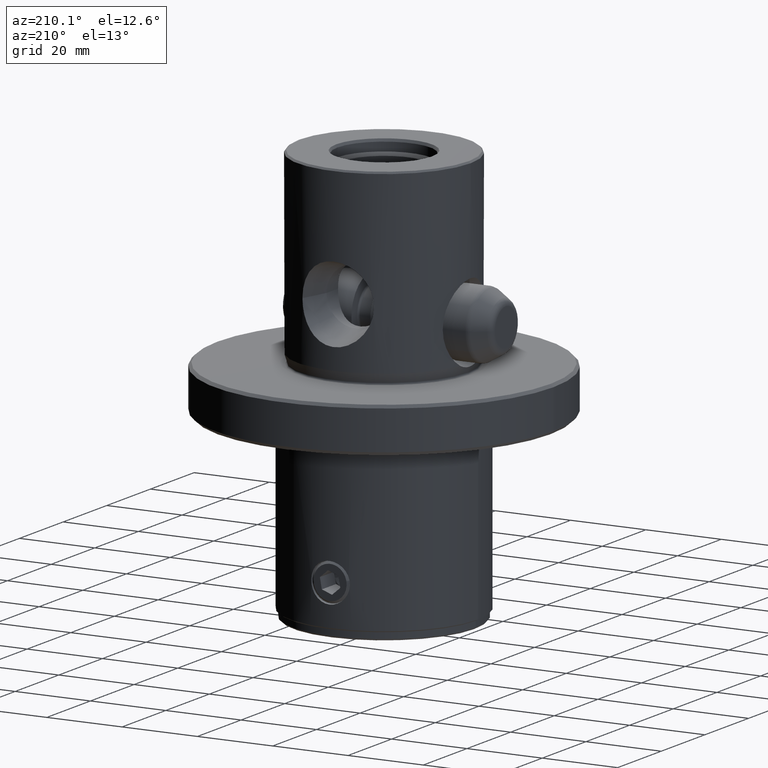
[diagram: clean part render]
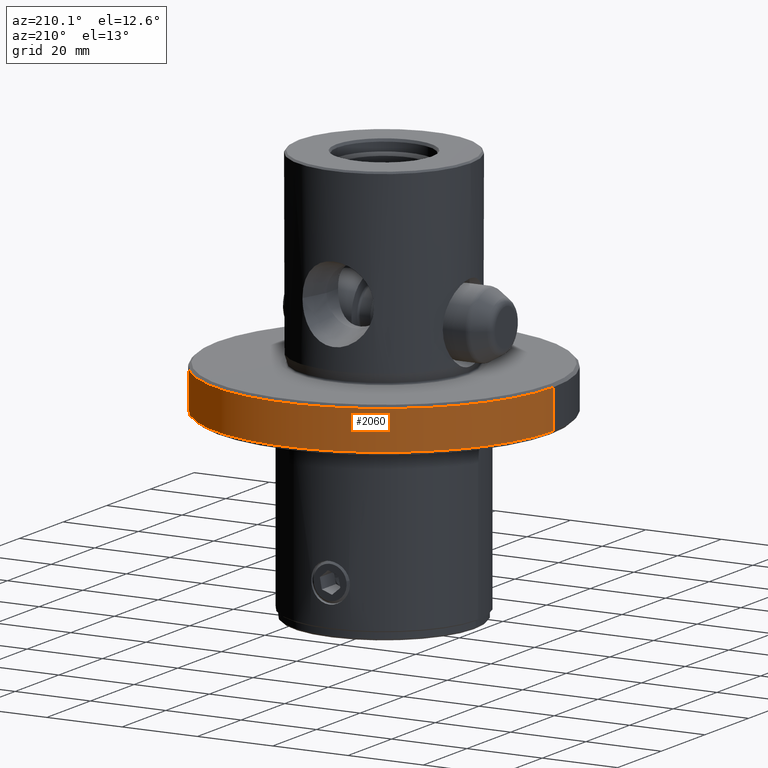
[diagram: same view with one face highlighted and labeled with its STEP entity id]
A machine part, auxiliary view. The second image highlights one B-rep face of the part: STEP entity #2060.
In plain terms, the highlighted cylindrical surface (partial cylindrical patch) has radius 45 mm, axis along (-0, -0, 1).
Its self-contained STEP definition (entity closure, byte-faithful):
#826=VERTEX_POINT('NONE',#2386);
#872=VERTEX_POINT('NONE',#2437);
#900=VERTEX_POINT('NONE',#2465);
#1064=EDGE_CURVE('NONE',#900,#872,#2654,.T.);
#1108=EDGE_CURVE('NONE',#900,#826,#2701,.T.);
#1798=EDGE_CURVE('NONE',#872,#1858,#3480,.T.);
#1858=VERTEX_POINT('NONE',#3546);
#2060=ADVANCED_FACE('NONE',(#3765),#3766,.T.);
#2174=EDGE_CURVE('NONE',#826,#1858,#3891,.T.);
#2386=CARTESIAN_POINT('',(45.0,0.0,-11.05));
#2437=CARTESIAN_POINT('',(-45.0,5.5107285922007E-015,-0.724999999999968));
#2465=CARTESIAN_POINT('',(-45.0,5.5107285922007E-015,-11.05));
#2654=LINE('',#4601,#4602);
#2701=CIRCLE('',#4667,45.0);
#3480=CIRCLE('',#6003,45.0);
#3546=CARTESIAN_POINT('',(45.0,0.0,-0.724999999999968));
#3765=FACE_OUTER_BOUND('',#6584,.T.);
#3766=CYLINDRICAL_SURFACE('',#6585,45.0);
#3891=LINE('',#6858,#6859);
#4601=CARTESIAN_POINT('',(-45.0,5.5107285922007E-015,54.0264650283554));
#4602=VECTOR('',#7579,1000.0);
#4667=AXIS2_PLACEMENT_3D('',#7635,#7636,#7637);
#6003=AXIS2_PLACEMENT_3D('',#8629,#8630,#8631);
#6584=EDGE_LOOP('',(#8945,#8946,#8947,#8948));
#6585=AXIS2_PLACEMENT_3D('',#8949,#8950,#8951);
#6858=CARTESIAN_POINT('',(45.0,0.0,54.0264650283554));
#6859=VECTOR('',#9090,1000.0);
#7579=DIRECTION('',(-0.0,0.0,1.0));
#7635=CARTESIAN_POINT('',(0.0,0.0,-11.05));
#7636=DIRECTION('',(0.0,0.0,-1.0));
#7637=DIRECTION('',(1.0,0.0,0.0));
#8629=CARTESIAN_POINT('',(0.0,0.0,-0.724999999999968));
#8630=DIRECTION('',(0.0,0.0,-1.0));
#8631=DIRECTION('',(-1.0,0.0,0.0));
#8945=ORIENTED_EDGE('',*,*,#1108,.F.);
#8946=ORIENTED_EDGE('',*,*,#1064,.T.);
#8947=ORIENTED_EDGE('',*,*,#1798,.T.);
#8948=ORIENTED_EDGE('',*,*,#2174,.F.);
#8949=CARTESIAN_POINT('',(0.0,0.0,54.0264650283554));
#8950=DIRECTION('',(-0.0,-0.0,1.0));
#8951=DIRECTION('',(1.0,0.0,0.0));
#9090=DIRECTION('',(-0.0,0.0,1.0));